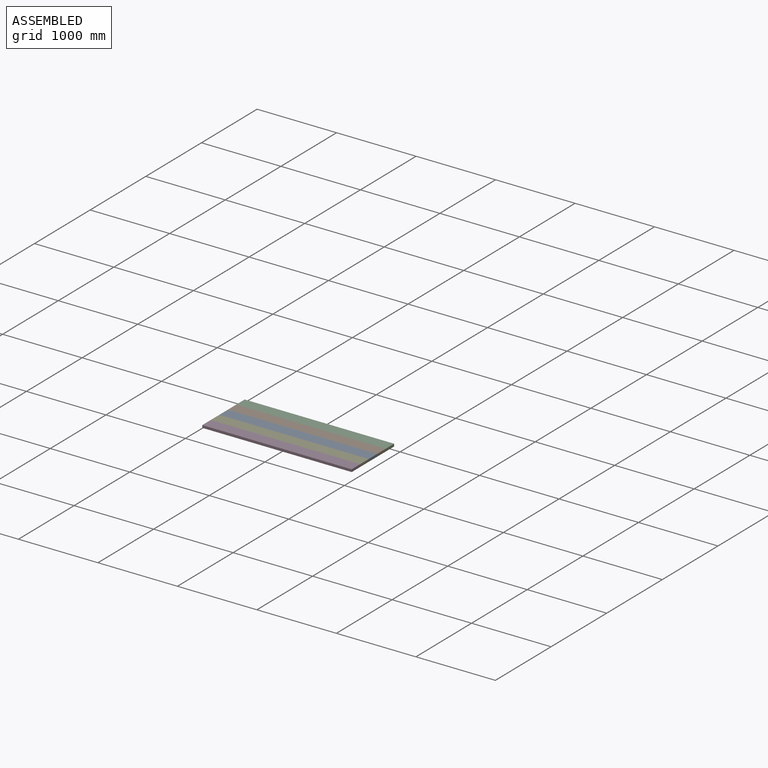
[diagram: assembled view]
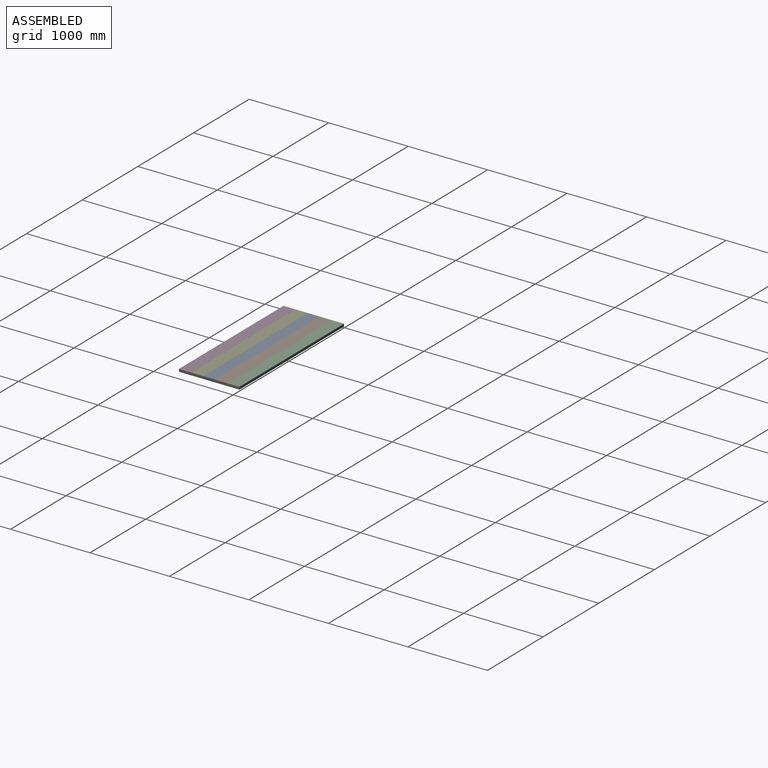
[diagram: assembled view, second angle]
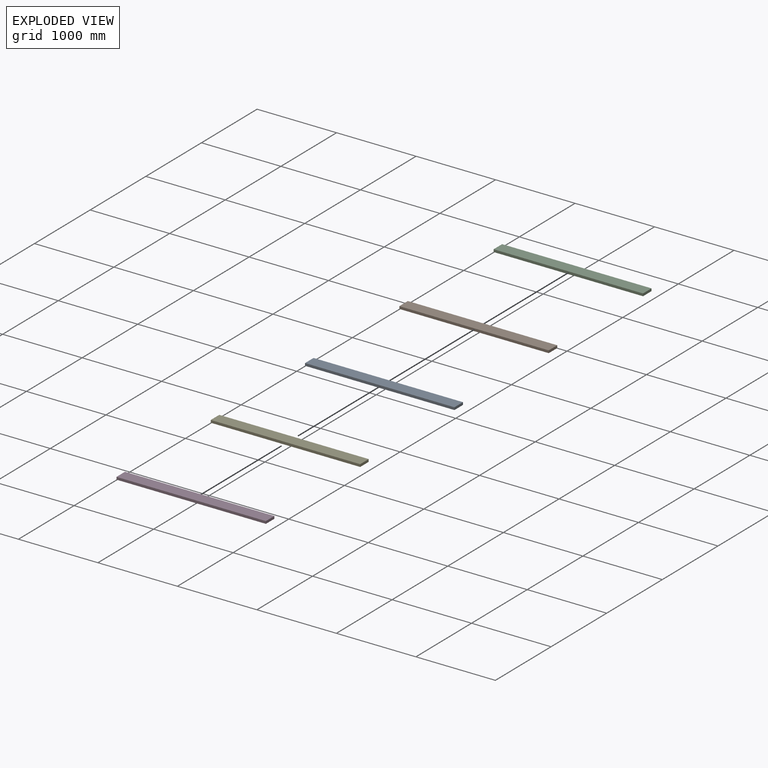
[diagram: exploded view]
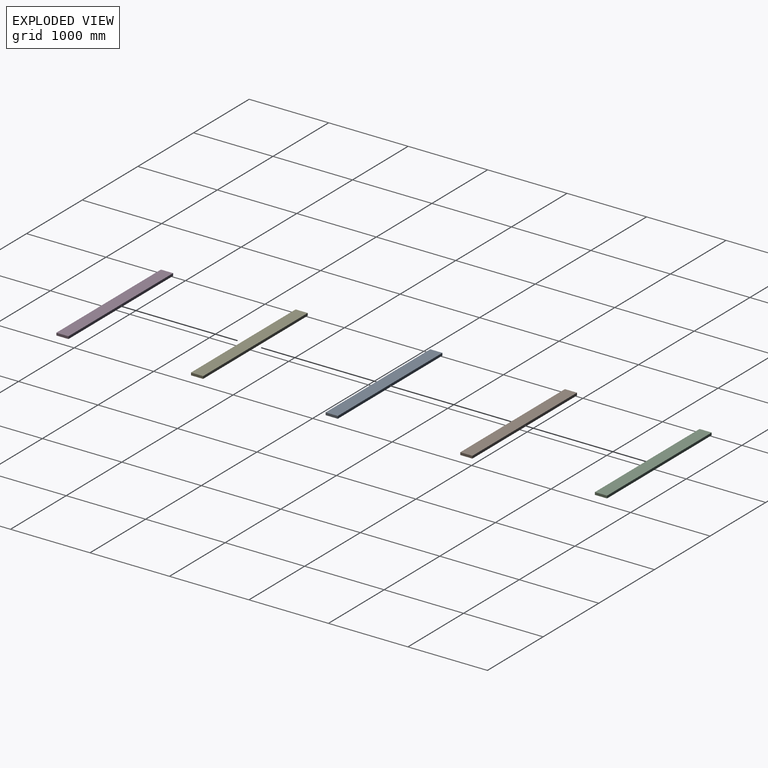
[diagram: exploded view, second angle]
ASSEMBLY  parts=5 mates=4
PART A: 6 faces, bbox 1879.6x152.4x31.8 mm
  f0: plane 1879.6x31.75mm, normal (0,-1,0), area 59677.3mm2, adj f1,f3,f4,f5
  f1: plane 152.4x31.75mm, normal (1,0,0), area 4838.7mm2, adj f0,f2,f4,f5
  f2: plane 1879.6x31.75mm, normal (0,1,0), area 59677.3mm2, adj f1,f3,f4,f5
  f3: plane 152.4x31.75mm, normal (-1,0,0), area 4838.7mm2, adj f0,f2,f4,f5
  f4: plane 1879.6x152.4mm, normal (0,0,1), area 286451mm2, adj f0,f1,f2,f3
  f5: plane 1879.6x152.4mm, normal (0,0,-1), area 286451mm2, adj f0,f1,f2,f3
PART B: same geometry as A
PART C: same geometry as A
PART D: same geometry as A
PART E: same geometry as A
PLACE A t=(-87.58,-438.74,101.45)mm
PLACE B t=(-87.58,-286.34,101.45)mm
PLACE C t=(-87.58,-133.94,101.45)mm
PLACE D t=(-87.58,-743.54,101.45)mm
PLACE E rot(axis=(1,0,0),180deg) t=(-87.58,-438.74,133.2)mm
MATE fastened E.f0 <-> A.f0  axis (0,1,0) through (-1967.18,-438.74,117.33)mm
MATE fastened B.f0 <-> A.f2  axis (0,-1,0) through (-87.58,-286.34,117.33)mm
MATE fastened E.f2 <-> D.f2  axis (0,-1,0) through (-1967.18,-591.14,117.33)mm
MATE fastened C.f0 <-> B.f2  axis (0,-1,0) through (-87.58,-133.94,117.33)mm
